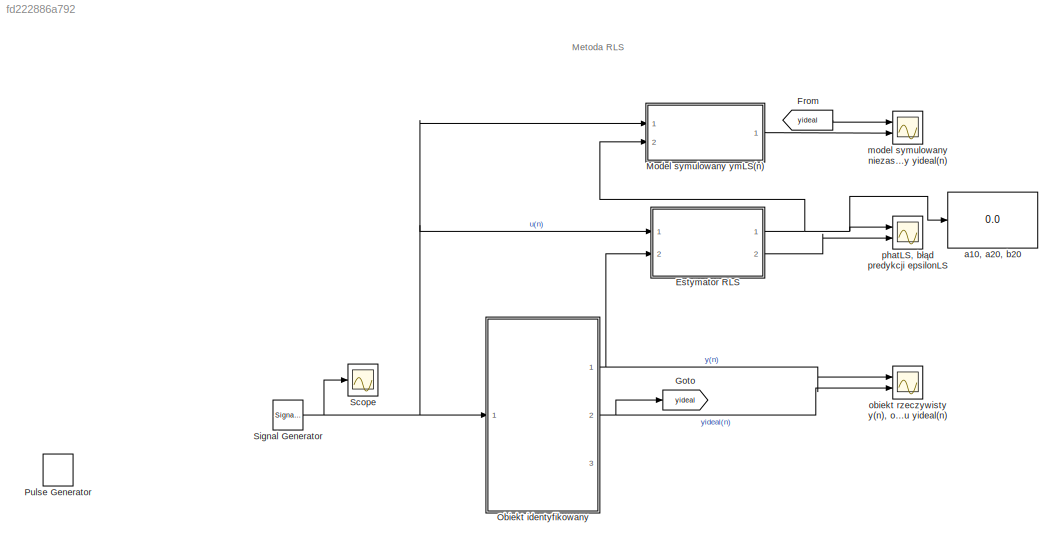
MODEL slx_fd222886a792
KIND model
CONFIG AbsTol = auto
CONFIG EnableMultiTasking = on
CONFIG FixedStep = Tp
CONFIG MaxStep = auto
CONFIG MinStep = auto
CONFIG RelTol = 1e-3
CONFIG SampleTimeConstraint = Unconstrained
CONFIG Solver = FixedStepDiscrete
CONFIG SolverName = FixedStepDiscrete
CONFIG StartTime = 0.0
CONFIG StopTime = Tend
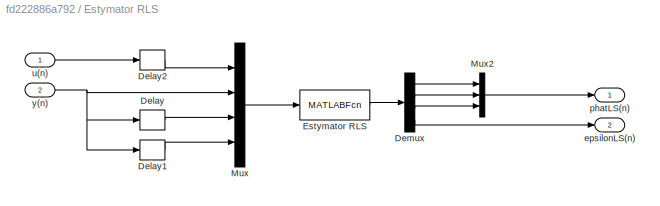
BLOCK [SubSystem] Estymator RLS
  Ports = [2, 2]
  RequestExecContextInheritance = off
BLOCK [Delay] Estymator RLS/Delay
  DelayLength = 1
  InputPortMap = u0
  Ports = [1, 1]
BLOCK [Delay] Estymator RLS/Delay1
  InputPortMap = u0
  Ports = [1, 1]
BLOCK [Delay] Estymator RLS/Delay2
  InputPortMap = u0
  Ports = [1, 1]
BLOCK [Demux] Estymator RLS/Demux
  DisplayOption = bar
  Ports = [1, 4]
BLOCK [MATLABFcn] Estymator RLS/Estymator RLS
  MATLABFcn = ZAD1_1d_RLS
  Ports = [1, 1]
BLOCK [Mux] Estymator RLS/Mux
  DisplayOption = bar
  Ports = [4, 1]
BLOCK [Mux] Estymator RLS/Mux2
  DisplayOption = bar
  Inputs = 3
  Ports = [3, 1]
BLOCK [Outport] Estymator RLS/epsilonLS(n)
  IconDisplay = Port number
  Port = 2
BLOCK [Outport] Estymator RLS/phatLS(n)
  IconDisplay = Port number
BLOCK [Inport] Estymator RLS/u(n)
  IconDisplay = Port number
BLOCK [Inport] Estymator RLS/y(n)
  IconDisplay = Port number
  Port = 2
BLOCK [From] From
  GotoTag = yideal
BLOCK [Goto] Goto
  GotoTag = yideal
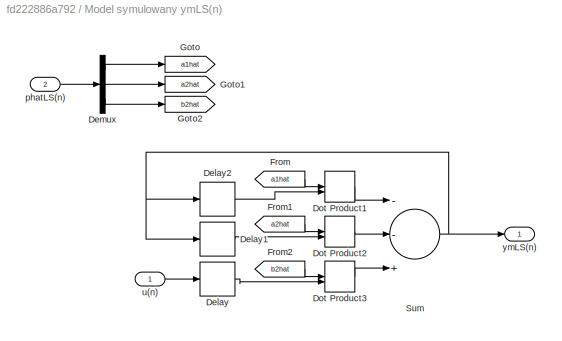
BLOCK [SubSystem] Model symulowany ymLS(n)
  Ports = [2, 1]
  RequestExecContextInheritance = off
BLOCK [Delay] Model symulowany ymLS(n)/Delay
  InputPortMap = u0
  Ports = [1, 1]
BLOCK [Delay] Model symulowany ymLS(n)/Delay1
  InputPortMap = u0
  Ports = [1, 1]
BLOCK [Delay] Model symulowany ymLS(n)/Delay2
  DelayLength = 1
  InputPortMap = u0
  Ports = [1, 1]
BLOCK [Demux] Model symulowany ymLS(n)/Demux
  DisplayOption = bar
  Outputs = 3
  Ports = [1, 3]
BLOCK [DotProduct] Model symulowany ymLS(n)/Dot Product1
  OutDataTypeStr = Inherit: Inherit via internal rule
BLOCK [DotProduct] Model symulowany ymLS(n)/Dot Product2
  OutDataTypeStr = Inherit: Inherit via internal rule
BLOCK [DotProduct] Model symulowany ymLS(n)/Dot Product3
  OutDataTypeStr = Inherit: Inherit via internal rule
BLOCK [From] Model symulowany ymLS(n)/From
  GotoTag = a1hat
BLOCK [From] Model symulowany ymLS(n)/From1
  GotoTag = a2hat
BLOCK [From] Model symulowany ymLS(n)/From2
  GotoTag = b2hat
BLOCK [Goto] Model symulowany ymLS(n)/Goto
  GotoTag = a1hat
BLOCK [Goto] Model symulowany ymLS(n)/Goto1
  GotoTag = a2hat
BLOCK [Goto] Model symulowany ymLS(n)/Goto2
  GotoTag = b2hat
BLOCK [Sum] Model symulowany ymLS(n)/Sum
  InputSameDT = off
  Inputs = --+
  OutDataTypeStr = Inherit: Inherit via internal rule
  Ports = [3, 1]
  SaturateOnIntegerOverflow = off
BLOCK [Inport] Model symulowany ymLS(n)/phatLS(n)
  IconDisplay = Port number
  Port = 2
BLOCK [Inport] Model symulowany ymLS(n)/u(n)
  IconDisplay = Port number
BLOCK [Outport] Model symulowany ymLS(n)/ymLS(n)
  IconDisplay = Port number
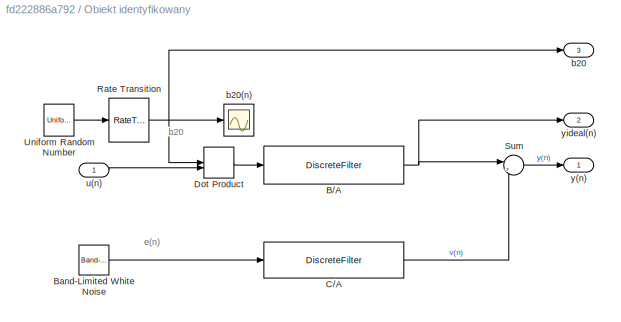
BLOCK [SubSystem] Obiekt identyfikowany
  Ports = [1, 3]
  RequestExecContextInheritance = off
BLOCK [DiscreteFilter] Obiekt identyfikowany/B//A
  Denominator = [1 -0.8 -0.1]
  InputPortMap = u0
  Numerator = [0 0 1]
  Ports = [1, 1]
  SampleTime = Tp
BLOCK [Reference] Obiekt identyfikowany/Band-Limited White Noise  REF=simulink/Sources/Band-Limited
White Noise
  Ports = [0, 1]
  SourceBlock = simulink/Sources/Band-Limited\nWhite Noise
  SourceProductBaseCode = SL
  SourceProductName = Simulink
  SourceType = Band-Limited White Noise.
BLOCK [DiscreteFilter] Obiekt identyfikowany/C//A
  Denominator = [1 -0.8 -0.1]
  InputPortMap = u0
  Numerator = [1 c10]
  Ports = [1, 1]
  SampleTime = Tp
BLOCK [DotProduct] Obiekt identyfikowany/Dot Product
  OutDataTypeStr = Inherit: Inherit via internal rule
BLOCK [RateTransition] Obiekt identyfikowany/Rate Transition
  InitialCondition = 0.5
  OutPortSampleTime = Tp
BLOCK [Sum] Obiekt identyfikowany/Sum
  IconShape = round
  InputSameDT = off
  Inputs = |++
  OutDataTypeStr = Inherit: Inherit via internal rule
  Ports = [2, 1]
BLOCK [UniformRandomNumber] Obiekt identyfikowany/Uniform Random Number
  Maximum = 0.5
  Minimum = 0
  SampleTime = Td
BLOCK [Outport] Obiekt identyfikowany/b20
  IconDisplay = Port number
  Port = 3
BLOCK [Scope] Obiekt identyfikowany/b20(n)
  Floating = off
  NumInputPorts = 1
  Ports = [1]
  ScopeSpecificationString = C++SS(StrPVP('Location','[6, 53, 1030, 743]'),StrPVP('Open','off'),MxPVP('AxesTitles',53,'struct(''axes1'',''%<SignalLabel>'')'),StrPVP('TimeRange','1000'),StrPVP('YMin','0'),StrPVP('YMax','0.5'),StrPVP('SaveName','ScopeData8'),StrPVP('DataFormat','StructureWithTime'),StrPVP('MaxDataPoints','50000'),StrPVP('BlockParamSampleTime','0'),StrPVP('LimitDataPoints','on'),StrPVP('Decimation','1'),StrPVP('...<+30ch>
BLOCK [Inport] Obiekt identyfikowany/u(n)
  IconDisplay = Port number
BLOCK [Outport] Obiekt identyfikowany/y(n)
  IconDisplay = Port number
BLOCK [Outport] Obiekt identyfikowany/yideal(n)
  IconDisplay = Port number
  Port = 2
BLOCK [DiscretePulseGenerator] Pulse Generator
  Commented = on
  Period = 5
  Ports = [0, 1]
  PulseType = Time based
  PulseWidth = 50
BLOCK [Scope] Scope
  Floating = off
  NumInputPorts = 1
  Ports = [1]
  ScopeSpecificationString = Simulink.scopes.TimeScopeBlockCfg('CurrentConfiguration', extmgr.ConfigurationSet(extmgr.Configuration('Core','General UI',true),extmgr.Configuration('Core','Source UI',true),extmgr.Configuration('Sources','WiredSimulink',true,'DataLoggingVariableName','ScopeData1'),extmgr.Configuration('Visuals','Time Domain',true,'SerializedDisplays',{struct('MinYLimReal','-1.25','MaxYLimReal','1.25','YLabelReal...<+1409ch>
BLOCK [SignalGenerator] Signal Generator
  Frequency = fu
  Ports = [0, 1]
  WaveForm = square
BLOCK [Display] a10, a20, b20
  Decimation = 1
  Ports = [1]
BLOCK [Scope] model symulowany niezaszumiony ym(n), obiekt rzeczywisty idealny yideal(n)
  Floating = off
  NumInputPorts = 2
  Ports = [2]
  ScopeSpecificationString = Simulink.scopes.TimeScopeBlockCfg('CurrentConfiguration', extmgr.ConfigurationSet(extmgr.Configuration('Core','General UI',true),extmgr.Configuration('Core','Source UI',true),extmgr.Configuration('Sources','WiredSimulink',true,'DataLoggingVariableName','ScopeData1'),extmgr.Configuration('Visuals','Time Domain',true,'SerializedDisplays',{struct('MinYLimReal','3.67904','MaxYLimReal','4.66578','YLabe...<+1515ch>
BLOCK [Scope] obiekt rzeczywisty y(n), obiekt rzeczywisty bez szumu yideal(n)
  Floating = off
  NumInputPorts = 2
  Ports = [2]
  ScopeSpecificationString = Simulink.scopes.TimeScopeBlockCfg('CurrentConfiguration', extmgr.ConfigurationSet(extmgr.Configuration('Core','General UI',true),extmgr.Configuration('Core','Source UI',true),extmgr.Configuration('Sources','WiredSimulink',true,'DataLoggingVariableName','ScopeData2'),extmgr.Configuration('Visuals','Time Domain',true,'SerializedDisplays',{struct('MinYLimReal','0.85565','MaxYLimReal','4.13606','YLabe...<+1498ch>
BLOCK [Scope] phatLS, błąd predykcji epsilonLS
  Floating = off
  NumInputPorts = 2
  Ports = [2]
  ScopeSpecificationString = Simulink.scopes.TimeScopeBlockCfg('CurrentConfiguration', extmgr.ConfigurationSet(extmgr.Configuration('Core','General UI',true),extmgr.Configuration('Core','Source UI',true),extmgr.Configuration('Sources','WiredSimulink',true,'DataLoggingVariableName','ScopeData3'),extmgr.Configuration('Visuals','Time Domain',true,'SerializedDisplays',{struct('MinYLimReal','-1.01992','MaxYLimReal','0.72775','YLab...<+2241ch>
ANNOTATION (root): Metoda RLS
ANNOTATION Obiekt identyfikowany: b20
ANNOTATION Obiekt identyfikowany: e(n)
LINE Estymator RLS/Delay1:1 -> Estymator RLS/Mux:4
LINE Estymator RLS/Delay2:1 -> Estymator RLS/Mux:1
LINE Estymator RLS/Delay:1 -> Estymator RLS/Mux:3
LINE Estymator RLS/Demux:1 -> Estymator RLS/Mux2:1
LINE Estymator RLS/Demux:2 -> Estymator RLS/Mux2:2
LINE Estymator RLS/Demux:3 -> Estymator RLS/Mux2:3
LINE Estymator RLS/Demux:4 -> Estymator RLS/epsilonLS(n):1
LINE Estymator RLS/Estymator RLS:1 -> Estymator RLS/Demux:1
LINE Estymator RLS/Mux2:1 -> Estymator RLS/phatLS(n):1
LINE Estymator RLS/Mux:1 -> Estymator RLS/Estymator RLS:1
LINE Estymator RLS/u(n):1 -> Estymator RLS/Delay2:1
NET Estymator RLS/y(n):1 -> Estymator RLS/Delay1:1, Estymator RLS/Delay:1, Estymator RLS/Mux:2
NET Estymator RLS:1 -> Model symulowany ymLS(n):2, a10, a20, b20:1, phatLS, błąd predykcji epsilonLS:1
LINE Estymator RLS:2 -> phatLS, błąd predykcji epsilonLS:2
LINE From:1 -> model symulowany niezaszumiony ym(n), obiekt rzeczywisty idealny yideal(n):1
LINE Model symulowany ymLS(n)/Delay1:1 -> Model symulowany ymLS(n)/Dot Product2:2
LINE Model symulowany ymLS(n)/Delay2:1 -> Model symulowany ymLS(n)/Dot Product1:2
LINE Model symulowany ymLS(n)/Delay:1 -> Model symulowany ymLS(n)/Dot Product3:2
LINE Model symulowany ymLS(n)/Demux:1 -> Model symulowany ymLS(n)/Goto:1
LINE Model symulowany ymLS(n)/Demux:2 -> Model symulowany ymLS(n)/Goto1:1
LINE Model symulowany ymLS(n)/Demux:3 -> Model symulowany ymLS(n)/Goto2:1
LINE Model symulowany ymLS(n)/Dot Product1:1 -> Model symulowany ymLS(n)/Sum:1
LINE Model symulowany ymLS(n)/Dot Product2:1 -> Model symulowany ymLS(n)/Sum:2
LINE Model symulowany ymLS(n)/Dot Product3:1 -> Model symulowany ymLS(n)/Sum:3
LINE Model symulowany ymLS(n)/From1:1 -> Model symulowany ymLS(n)/Dot Product2:1
LINE Model symulowany ymLS(n)/From2:1 -> Model symulowany ymLS(n)/Dot Product3:1
LINE Model symulowany ymLS(n)/From:1 -> Model symulowany ymLS(n)/Dot Product1:1
NET Model symulowany ymLS(n)/Sum:1 -> Model symulowany ymLS(n)/Delay1:1, Model symulowany ymLS(n)/Delay2:1, Model symulowany ymLS(n)/ymLS(n):1
LINE Model symulowany ymLS(n)/phatLS(n):1 -> Model symulowany ymLS(n)/Demux:1
LINE Model symulowany ymLS(n)/u(n):1 -> Model symulowany ymLS(n)/Delay:1
LINE Model symulowany ymLS(n):1 -> model symulowany niezaszumiony ym(n), obiekt rzeczywisty idealny yideal(n):2
NET Obiekt identyfikowany/B//A:1 -> Obiekt identyfikowany/Sum:1, Obiekt identyfikowany/yideal(n):1
LINE Obiekt identyfikowany/Band-Limited White Noise:1 -> Obiekt identyfikowany/C//A:1
LINE Obiekt identyfikowany/C//A:1 -> Obiekt identyfikowany/Sum:2
LINE Obiekt identyfikowany/Dot Product:1 -> Obiekt identyfikowany/B//A:1
NET Obiekt identyfikowany/Rate Transition:1 -> Obiekt identyfikowany/Dot Product:1, Obiekt identyfikowany/b20(n):1, Obiekt identyfikowany/b20:1
LINE Obiekt identyfikowany/Sum:1 -> Obiekt identyfikowany/y(n):1
LINE Obiekt identyfikowany/Uniform Random Number:1 -> Obiekt identyfikowany/Rate Transition:1
LINE Obiekt identyfikowany/u(n):1 -> Obiekt identyfikowany/Dot Product:2
NET Obiekt identyfikowany:1 -> Estymator RLS:2, obiekt rzeczywisty y(n), obiekt rzeczywisty bez szumu yideal(n):1
NET Obiekt identyfikowany:2 -> Goto:1, obiekt rzeczywisty y(n), obiekt rzeczywisty bez szumu yideal(n):2
NET Signal Generator:1 -> Estymator RLS:1, Model symulowany ymLS(n):1, Obiekt identyfikowany:1, Scope:1
note: NET lines group one-source signal fan-out (src -> all destinations, sorted); 1:1 wires keep LINE
